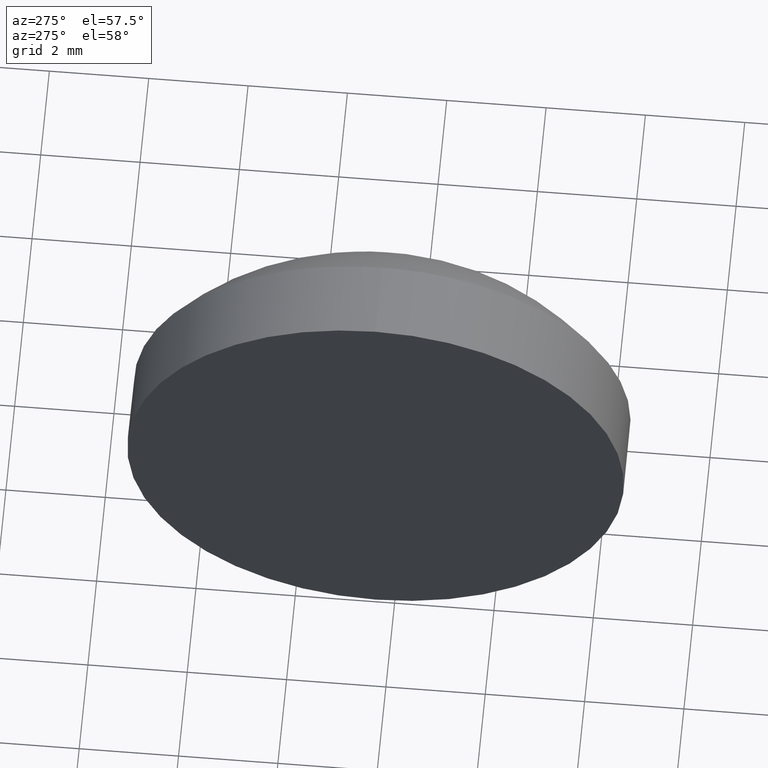
[diagram: clean part render]
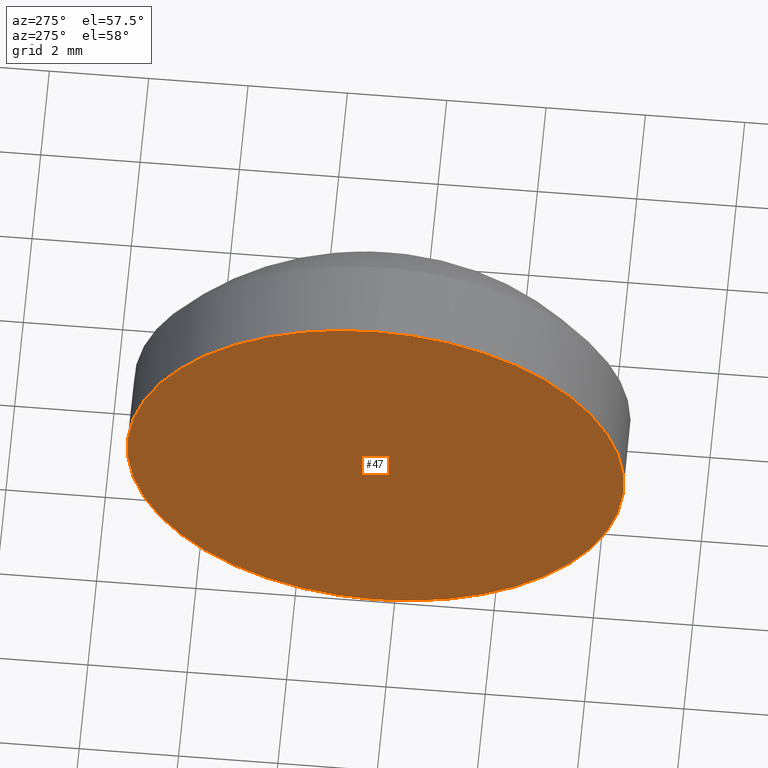
[diagram: same view with one face highlighted and labeled with its STEP entity id]
A machine part, auxiliary view. The second image highlights one B-rep face of the part: STEP entity #47.
In plain terms, the highlighted planar face has unit normal (1, 0, 0).
Its self-contained STEP definition (entity closure, byte-faithful):
#6 = DIRECTION ( 'NONE',  ( -1.000000000000000000, -0.0000000000000000000, -0.0000000000000000000 ) ) ;
#7 = CARTESIAN_POINT ( 'NONE',  ( 535.9096273029953200, 134.3762019213367000, -5.000000000000004400 ) ) ;
#9 = ORIENTED_EDGE ( 'NONE', *, *, #145, .T. ) ;
#25 = EDGE_LOOP ( 'NONE', ( #54, #9 ) ) ;
#36 = VERTEX_POINT ( 'NONE', #7 ) ;
#38 = DIRECTION ( 'NONE',  ( 0.0000000000000000000, 0.0000000000000000000, -1.000000000000000000 ) ) ;
#47 = ADVANCED_FACE ( 'NONE', ( #160 ), #128, .F. ) ;
#49 = AXIS2_PLACEMENT_3D ( 'NONE', #178, #6, #111 ) ;
#53 = CARTESIAN_POINT ( 'NONE',  ( 535.9096273029953200, 134.3762019213367000, 0.0000000000000000000 ) ) ;
#54 = ORIENTED_EDGE ( 'NONE', *, *, #153, .T. ) ;
#57 = AXIS2_PLACEMENT_3D ( 'NONE', #95, #126, #164 ) ;
#73 = AXIS2_PLACEMENT_3D ( 'NONE', #53, #156, #38 ) ;
#90 = VERTEX_POINT ( 'NONE', #101 ) ;
#95 = CARTESIAN_POINT ( 'NONE',  ( 535.9096273029953200, 134.3762019213367000, 0.0000000000000000000 ) ) ;
#101 = CARTESIAN_POINT ( 'NONE',  ( 535.9096273029953200, 134.3762019213367000, 5.000000000000004400 ) ) ;
#111 = DIRECTION ( 'NONE',  ( 0.0000000000000000000, 0.0000000000000000000, 1.000000000000000000 ) ) ;
#117 = CIRCLE ( 'NONE', #57, 5.000000000000004400 ) ;
#126 = DIRECTION ( 'NONE',  ( -1.000000000000000000, -0.0000000000000000000, -0.0000000000000000000 ) ) ;
#128 = PLANE ( 'NONE',  #73 ) ;
#145 = EDGE_CURVE ( 'NONE', #36, #90, #117, .T. ) ;
#148 = CIRCLE ( 'NONE', #49, 5.000000000000004400 ) ;
#153 = EDGE_CURVE ( 'NONE', #90, #36, #148, .T. ) ;
#156 = DIRECTION ( 'NONE',  ( 1.000000000000000000, 0.0000000000000000000, 0.0000000000000000000 ) ) ;
#160 = FACE_OUTER_BOUND ( 'NONE', #25, .T. ) ;
#164 = DIRECTION ( 'NONE',  ( 0.0000000000000000000, 0.0000000000000000000, 1.000000000000000000 ) ) ;
#178 = CARTESIAN_POINT ( 'NONE',  ( 535.9096273029953200, 134.3762019213367000, 0.0000000000000000000 ) ) ;